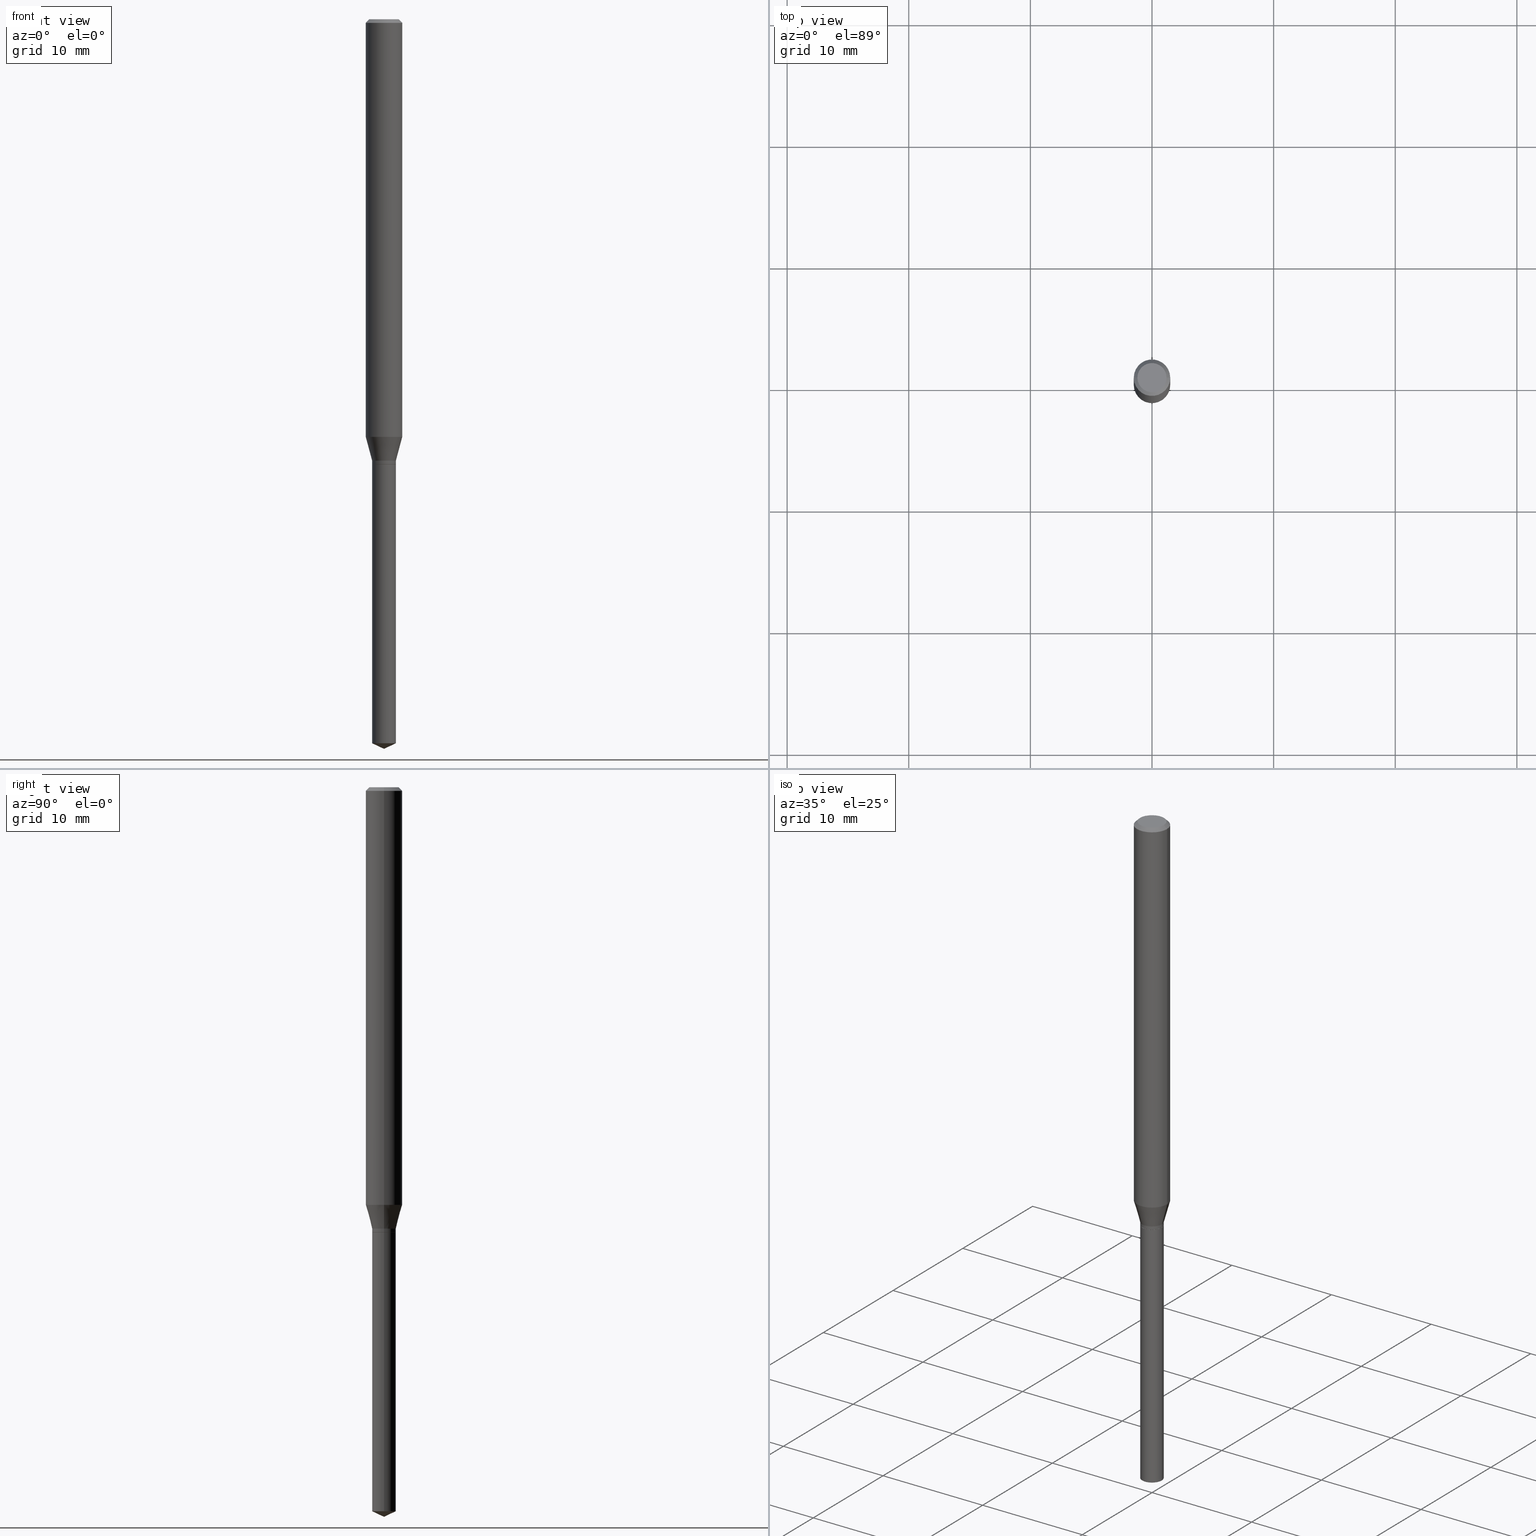
[diagram: canonical four-view strip — front | top / right | iso, engineering-drawing reading convention]
A machine part, canonical four-view strip (front | top / right | iso — engineering-drawing reading convention). The complete STEP part file that produces these views, byte-faithful:
ISO-10303-21;
HEADER;
FILE_DESCRIPTION (( 'STEP AP203' ),
    '1' );
FILE_NAME ('08368.STEP',
    '2024-04-24T14:39:10',
    ( '' ),
    ( '' ),
    'SwSTEP 2.0',
    'SolidWorks 2023',
    '' );
FILE_SCHEMA (( 'CONFIG_CONTROL_DESIGN' ));
ENDSEC;

DATA;
#1 = AXIS2_PLACEMENT_3D ( 'NONE', #54, #275, #362 ) ;
#2 = SECURITY_CLASSIFICATION ( '', '', #125 ) ;
#3 = FACE_OUTER_BOUND ( 'NONE', #156, .T. ) ;
#4 = CARTESIAN_POINT ( 'NONE',  ( 0.03789999999999999619, -5.294831450355630161E-15, -1.440700000000000314 ) ) ;
#5 = ADVANCED_FACE ( 'NONE', ( #3 ), #341, .T. ) ;
#6 = DATE_AND_TIME ( #348, #196 ) ;
#7 = AXIS2_PLACEMENT_3D ( 'NONE', #153, #488, #307 ) ;
#8 = EDGE_CURVE ( 'NONE', #342, #145, #367, .T. ) ;
#9 = AXIS2_PLACEMENT_3D ( 'NONE', #206, #279, #82 ) ;
#10 = DIRECTION ( 'NONE',  ( -2.445468806185136877E-29, 3.491481338843145188E-15, 1.000000000000000000 ) ) ;
#11 = DIRECTION ( 'NONE',  ( 1.000000000000000000, -6.982962677686268288E-15, 0.000000000000000000 ) ) ;
#12 = APPROVAL_DATE_TIME ( #350, #278 ) ;
#13 = ADVANCED_FACE ( 'NONE', ( #306 ), #106, .T. ) ;
#14 = DIRECTION ( 'NONE',  ( 1.000000000000000000, -6.982962677686277755E-15, 0.000000000000000000 ) ) ;
#15 = AXIS2_PLACEMENT_3D ( 'NONE', #117, #432, #398 ) ;
#16 = ORGANIZATION ( 'UNSPECIFIED', 'UNSPECIFIED', '' ) ;
#17 = CARTESIAN_POINT ( 'NONE',  ( 0.05905000000000008159, -4.123439461173746736E-16, 2.879382386107504424E-30 ) ) ;
#18 = DIRECTION ( 'NONE',  ( -2.445468806185136597E-29, 3.491481338843145583E-15, 1.000000000000000000 ) ) ;
#19 = DIRECTION ( 'NONE',  ( 1.000000000000000000, -6.982962677686266711E-15, 0.000000000000000000 ) ) ;
#20 = CARTESIAN_POINT ( 'NONE',  ( 5.776197320209293305E-29, -8.246878922347511025E-15, -2.362000000000000099 ) ) ;
#21 = ORIENTED_EDGE ( 'NONE', *, *, #193, .T. ) ;
#22 = DIRECTION ( 'NONE',  ( 1.000000000000000000, -6.982962677686269077E-15, 0.000000000000000000 ) ) ;
#23 = CYLINDRICAL_SURFACE ( 'NONE', #436, 0.03840000000000004521 ) ;
#24 = AXIS2_PLACEMENT_3D ( 'NONE', #148, #303, #181 ) ;
#25 = EDGE_LOOP ( 'NONE', ( #39, #21, #394, #180 ) ) ;
#26 = CYLINDRICAL_SURFACE ( 'NONE', #262, 0.05905000000000008159 ) ;
#27 = DATE_AND_TIME ( #294, #35 ) ;
#28 = ORIENTED_EDGE ( 'NONE', *, *, #8, .T. ) ;
#29 = CARTESIAN_POINT ( 'NONE',  ( 0.000000000000000000, 0.000000000000000000, 0.000000000000000000 ) ) ;
#30 = APPROVAL ( #158, 'UNSPECIFIED' ) ;
#31 = VERTEX_POINT ( 'NONE', #4 ) ;
#32 = CARTESIAN_POINT ( 'NONE',  ( 3.523186909070927115E-29, -5.030177164871321543E-15, -1.440700000000000314 ) ) ;
#33 = APPROVAL_DATE_TIME ( #27, #474 ) ;
#34 = AXIS2_PLACEMENT_3D ( 'NONE', #51, #363, #237 ) ;
#35 = LOCAL_TIME ( 10, 39, 10.00000000000000000, #375 ) ;
#36 = VERTEX_POINT ( 'NONE', #38 ) ;
#37 = CARTESIAN_POINT ( 'NONE',  ( 0.03840000000000004521, -5.258170896297777797E-15, -1.429200000000000248 ) ) ;
#38 = CARTESIAN_POINT ( 'NONE',  ( 0.05905000000000017180, -5.133291609849517626E-15, -1.352133150823702445 ) ) ;
#39 = ORIENTED_EDGE ( 'NONE', *, *, #108, .T. ) ;
#40 = VERTEX_POINT ( 'NONE', #75 ) ;
#41 = FACE_OUTER_BOUND ( 'NONE', #481, .T. ) ;
#42 = AXIS2_PLACEMENT_3D ( 'NONE', #245, #407, #19 ) ;
#43 = LOCAL_TIME ( 10, 39, 10.00000000000000000, #445 ) ;
#44 = CARTESIAN_POINT ( 'NONE',  ( 3.523186909070927115E-29, -5.030177164871321543E-15, -1.440700000000000314 ) ) ;
#45 = CALENDAR_DATE ( 2024, 24, 4 ) ;
#46 = ORIENTED_EDGE ( 'NONE', *, *, #98, .T. ) ;
#47 = FACE_OUTER_BOUND ( 'NONE', #339, .T. ) ;
#48 = AXIS2_PLACEMENT_3D ( 'NONE', #371, #70, #336 ) ;
#49 = APPROVAL_PERSON_ORGANIZATION ( #471, #30, #119 ) ;
#50 = LINE ( 'NONE', #85, #451 ) ;
#51 = CARTESIAN_POINT ( 'NONE',  ( 3.523186909070927115E-29, -5.030177164871321543E-15, -1.440700000000000314 ) ) ;
#52 = DIRECTION ( 'NONE',  ( -2.445468806185136597E-29, 3.491481338843145583E-15, 1.000000000000000000 ) ) ;
#53 = DIRECTION ( 'NONE',  ( -2.445468806185136597E-29, 3.491481338843145583E-15, 1.000000000000000000 ) ) ;
#54 = CARTESIAN_POINT ( 'NONE',  ( 8.265746106709734507E-48, -1.180129479067563789E-33, -3.380025165646692144E-19 ) ) ;
#55 = DIRECTION ( 'NONE',  ( 1.000000000000000000, -6.982962677686265133E-15, 0.000000000000000000 ) ) ;
#56 = CONICAL_SURFACE ( 'NONE', #130, 84.42940631927430672, 1.134464013796315784 ) ;
#57 = CIRCLE ( 'NONE', #298, 0.03839999999999999664 ) ;
#58 = AXIS2_PLACEMENT_3D ( 'NONE', #164, #374, #22 ) ;
#59 = CARTESIAN_POINT ( 'NONE',  ( 5.776197320209293305E-29, -8.246878922347511025E-15, -2.362000000000000099 ) ) ;
#60 = CARTESIAN_POINT ( 'NONE',  ( 3.521964174667835434E-29, -5.028431424201900828E-15, -1.440200000000000591 ) ) ;
#61 = EDGE_CURVE ( 'NONE', #334, #187, #387, .T. ) ;
#62 = ADVANCED_FACE ( 'NONE', ( #41 ), #297, .T. ) ;
#63 = VERTEX_POINT ( 'NONE', #461 ) ;
#64 = VERTEX_POINT ( 'NONE', #430 ) ;
#65 = AXIS2_PLACEMENT_3D ( 'NONE', #137, #450, #256 ) ;
#66 = CC_DESIGN_SECURITY_CLASSIFICATION ( #2, ( #478 ) ) ;
#67 = ORIENTED_EDGE ( 'NONE', *, *, #203, .F. ) ;
#68 = CC_DESIGN_PERSON_AND_ORGANIZATION_ASSIGNMENT ( #129, #285, ( #2 ) ) ;
#69 = ORIENTED_EDGE ( 'NONE', *, *, #98, .F. ) ;
#70 = DIRECTION ( 'NONE',  ( 2.438088387897960049E-29, -3.491481338843145188E-15, -1.000000000000000000 ) ) ;
#71 = EDGE_LOOP ( 'NONE', ( #149, #290, #486, #257 ) ) ;
#72 = DIRECTION ( 'NONE',  ( -2.445468806185136597E-29, 3.491481338843145583E-15, 1.000000000000000000 ) ) ;
#73 = CIRCLE ( 'NONE', #194, 0.03839999999999999664 ) ;
#74 = CIRCLE ( 'NONE', #65, 0.05904999999999999832 ) ;
#75 = CARTESIAN_POINT ( 'NONE',  ( 0.03839999999999998970, -8.452505476884922181E-15, -2.344093785926848028 ) ) ;
#76 = ORIENTED_EDGE ( 'NONE', *, *, #61, .F. ) ;
#77 = ORIENTED_EDGE ( 'NONE', *, *, #391, .T. ) ;
#78 = LINE ( 'NONE', #349, #490 ) ;
#79 = CIRCLE ( 'NONE', #150, 0.03840000000000004521 ) ;
#80 = VERTEX_POINT ( 'NONE', #200 ) ;
#81 = PLANE ( 'NONE',  #34 ) ;
#82 = DIRECTION ( 'NONE',  ( 1.000000000000000000, -6.982962677686269077E-15, 0.000000000000000000 ) ) ;
#83 = EDGE_CURVE ( 'NONE', #80, #142, #79, .T. ) ;
#84 = CONICAL_SURFACE ( 'NONE', #151, 0.03840000000000004521, 0.2617993877991499074 ) ;
#85 = CARTESIAN_POINT ( 'NONE',  ( 0.05904999999999999832, -4.463468013801466955E-16, -0.01181000000000007044 ) ) ;
#86 = LINE ( 'NONE', #242, #104 ) ;
#87 = FACE_OUTER_BOUND ( 'NONE', #300, .T. ) ;
#88 = CYLINDRICAL_SURFACE ( 'NONE', #326, 0.03840000000000004521 ) ;
#89 = CIRCLE ( 'NONE', #24, 0.03789999999999999619 ) ;
#90 = EDGE_CURVE ( 'NONE', #447, #187, #78, .T. ) ;
#91 = DATE_AND_TIME ( #252, #43 ) ;
#92 = DIRECTION ( 'NONE',  ( 1.000000000000000000, -6.982962677686270655E-15, 0.000000000000000000 ) ) ;
#93 = ORIENTED_EDGE ( 'NONE', *, *, #251, .T. ) ;
#94 = CARTESIAN_POINT ( 'NONE',  ( -0.03840000000000005215, -4.736379866306383524E-15, -1.440200000000000591 ) ) ;
#95 = ADVANCED_FACE ( 'NONE', ( #47 ), #358, .T. ) ;
#96 = AXIS2_PLACEMENT_3D ( 'NONE', #199, #197, #105 ) ;
#97 = CARTESIAN_POINT ( 'NONE',  ( 0.03840000000000004521, -2.681457668231529568E-16, 1.872451881905641640E-30 ) ) ;
#98 = EDGE_CURVE ( 'NONE', #31, #484, #120, .T. ) ;
#99 = ORIENTED_EDGE ( 'NONE', *, *, #397, .T. ) ;
#100 = EDGE_LOOP ( 'NONE', ( #99, #259, #414, #174 ) ) ;
#101 = DIRECTION ( 'NONE',  ( -2.445468806185136877E-29, 3.491481338843145188E-15, 1.000000000000000000 ) ) ;
#102 = ORIENTED_EDGE ( 'NONE', *, *, #251, .F. ) ;
#103 = VECTOR ( 'NONE', #352, 39.37007874015748143 ) ;
#104 = VECTOR ( 'NONE', #403, 39.37007874015748143 ) ;
#105 = DIRECTION ( 'NONE',  ( 1.000000000000000000, -6.982962677686277755E-15, 0.000000000000000000 ) ) ;
#106 = CYLINDRICAL_SURFACE ( 'NONE', #218, 0.05905000000000008159 ) ;
#107 = DIRECTION ( 'NONE',  ( 1.000000000000000000, -6.982962677686269077E-15, 0.000000000000000000 ) ) ;
#108 = EDGE_CURVE ( 'NONE', #40, #346, #73, .T. ) ;
#109 = ORIENTED_EDGE ( 'NONE', *, *, #232, .T. ) ;
#110 = LOCAL_TIME ( 10, 39, 10.00000000000000000, #395 ) ;
#111 = DIRECTION ( 'NONE',  ( -2.445468806185136877E-29, 3.491481338843145188E-15, 1.000000000000000000 ) ) ;
#112 = DIRECTION ( 'NONE',  ( 1.000000000000000000, -6.982962677686268288E-15, 0.000000000000000000 ) ) ;
#113 = UNCERTAINTY_MEASURE_WITH_UNIT (LENGTH_MEASURE( 1.000000000000000082E-05 ), #231, 'distance_accuracy_value', 'NONE');
#114 = ADVANCED_FACE ( 'NONE', ( #323 ), #88, .T. ) ;
#115 = DIRECTION ( 'NONE',  ( 1.000000000000000000, -6.982962677686265133E-15, 0.000000000000000000 ) ) ;
#116 = APPROVAL_ROLE ( '' ) ;
#117 = CARTESIAN_POINT ( 'NONE',  ( 2.888098660104663766E-31, -4.123439461173779647E-17, -0.01181000000000007044 ) ) ;
#118 = CARTESIAN_POINT ( 'NONE',  ( 0.03839999999999999664, -5.298322931694473957E-15, -1.440700000000000314 ) ) ;
#119 = APPROVAL_ROLE ( '' ) ;
#120 = CIRCLE ( 'NONE', #417, 0.03789999999999999619 ) ;
#121 = AXIS2_PLACEMENT_3D ( 'NONE', #485, #144, #455 ) ;
#122 = DIRECTION ( 'NONE',  ( -2.445468806185136597E-29, 3.491481338843145583E-15, 1.000000000000000000 ) ) ;
#123 = CARTESIAN_POINT ( 'NONE',  ( 3.523186909070927115E-29, -5.030177164871321543E-15, -1.440700000000000314 ) ) ;
#124 = CARTESIAN_POINT ( 'NONE',  ( 0.03839999999999999664, -5.298322931694473957E-15, -1.440700000000000314 ) ) ;
#125 = SECURITY_CLASSIFICATION_LEVEL ( 'unclassified' ) ;
#126 = CC_DESIGN_DATE_AND_TIME_ASSIGNMENT ( #91, #411, ( #2 ) ) ;
#127 = CARTESIAN_POINT ( 'NONE',  ( 3.495064017799797725E-29, -4.990025129474624594E-15, -1.429200000000000248 ) ) ;
#128 = DIRECTION ( 'NONE',  ( 1.000000000000000000, -6.982962677686277755E-15, 0.000000000000000000 ) ) ;
#129 = PERSON_AND_ORGANIZATION ( #369, #16 ) ;
#130 = AXIS2_PLACEMENT_3D ( 'NONE', #434, #282, #11 ) ;
#131 = CIRCLE ( 'NONE', #424, 0.04724000000000000421 ) ;
#132 = CARTESIAN_POINT ( 'NONE',  ( 0.000000000000000000, 0.000000000000000000, 0.000000000000000000 ) ) ;
#133 = APPROVAL_STATUS ( 'not_yet_approved' ) ;
#134 = EDGE_LOOP ( 'NONE', ( #77, #372 ) ) ;
#135 = LINE ( 'NONE', #330, #408 ) ;
#136 = ORIENTED_EDGE ( 'NONE', *, *, #373, .F. ) ;
#137 = CARTESIAN_POINT ( 'NONE',  ( 2.888098660104663766E-31, -4.123439461173779647E-17, -0.01181000000000007044 ) ) ;
#138 = ORIENTED_EDGE ( 'NONE', *, *, #90, .T. ) ;
#139 =( NAMED_UNIT ( * ) SI_UNIT ( $, .STERADIAN. ) SOLID_ANGLE_UNIT ( ) );
#140 = DIRECTION ( 'NONE',  ( -2.445468806185136597E-29, 3.491481338843145583E-15, 1.000000000000000000 ) ) ;
#141 = AXIS2_PLACEMENT_3D ( 'NONE', #132, #404, #314 ) ;
#142 = VERTEX_POINT ( 'NONE', #274 ) ;
#143 = APPLICATION_CONTEXT ( 'configuration controlled 3d designs of mechanical parts and assemblies' ) ;
#144 = DIRECTION ( 'NONE',  ( -2.445468806185136597E-29, 3.491481338843145583E-15, 1.000000000000000000 ) ) ;
#145 = VERTEX_POINT ( 'NONE', #124 ) ;
#146 = ADVANCED_FACE ( 'NONE', ( #87 ), #56, .T. ) ;
#147 = EDGE_CURVE ( 'NONE', #40, #145, #406, .T. ) ;
#148 = CARTESIAN_POINT ( 'NONE',  ( 3.523186909070927115E-29, -5.030177164871321543E-15, -1.440700000000000314 ) ) ;
#149 = ORIENTED_EDGE ( 'NONE', *, *, #83, .T. ) ;
#150 = AXIS2_PLACEMENT_3D ( 'NONE', #155, #308, #107 ) ;
#151 = AXIS2_PLACEMENT_3D ( 'NONE', #127, #162, #167 ) ;
#152 = ORIENTED_EDGE ( 'NONE', *, *, #347, .F. ) ;
#153 = CARTESIAN_POINT ( 'NONE',  ( 2.888098660104663766E-31, -4.123439461173779647E-17, -0.01181000000000007044 ) ) ;
#154 = EDGE_CURVE ( 'NONE', #63, #334, #131, .T. ) ;
#155 = CARTESIAN_POINT ( 'NONE',  ( 3.495064017799797725E-29, -4.990025129474624594E-15, -1.429200000000000248 ) ) ;
#156 = EDGE_LOOP ( 'NONE', ( #376, #263, #182, #385 ) ) ;
#157 = CONICAL_SURFACE ( 'NONE', #368, 0.03789999999999999619, 0.7853981633978751598 ) ;
#158 = APPROVAL_STATUS ( 'not_yet_approved' ) ;
#159 = DIRECTION ( 'NONE',  ( 0.7071067811868493314, -2.468850131085418026E-15, 0.7071067811862457031 ) ) ;
#160 = PRODUCT_RELATED_PRODUCT_CATEGORY ( 'detail', '', ( #402 ) ) ;
#161 = FACE_OUTER_BOUND ( 'NONE', #183, .T. ) ;
#162 = DIRECTION ( 'NONE',  ( -2.445468806185136597E-29, 3.491481338843145583E-15, 1.000000000000000000 ) ) ;
#163 = DIRECTION ( 'NONE',  ( -2.445468806185136597E-29, 3.491481338843145583E-15, 1.000000000000000000 ) ) ;
#164 = CARTESIAN_POINT ( 'NONE',  ( 3.495064017799797725E-29, -4.990025129474624594E-15, -1.429200000000000248 ) ) ;
#165 = FACE_OUTER_BOUND ( 'NONE', #265, .T. ) ;
#166 = CIRCLE ( 'NONE', #483, 0.03840000000000004521 ) ;
#167 = DIRECTION ( 'NONE',  ( 1.000000000000000000, -6.982962677686269077E-15, 0.000000000000000000 ) ) ;
#168 = CARTESIAN_POINT ( 'NONE',  ( 3.523186909070927115E-29, -5.030177164871321543E-15, -1.440700000000000314 ) ) ;
#169 = DATE_AND_TIME ( #448, #361 ) ;
#170 = CARTESIAN_POINT ( 'NONE',  ( 8.265746106709734507E-48, -1.180129479067563789E-33, -3.380025165646692144E-19 ) ) ;
#171 = FACE_OUTER_BOUND ( 'NONE', #329, .T. ) ;
#172 = APPROVAL_ROLE ( '' ) ;
#173 = PERSON_AND_ORGANIZATION ( #369, #16 ) ;
#174 = ORIENTED_EDGE ( 'NONE', *, *, #332, .F. ) ;
#175 = VECTOR ( 'NONE', #396, 39.37007874015748143 ) ;
#176 =( LENGTH_UNIT ( ) NAMED_UNIT ( * ) SI_UNIT ( $, .METRE. ) );
#177 = APPROVAL_PERSON_ORGANIZATION ( #173, #474, #172 ) ;
#178 = CC_DESIGN_DATE_AND_TIME_ASSIGNMENT ( #6, #317, ( #238 ) ) ;
#179 = DIRECTION ( 'NONE',  ( 1.000000000000000000, -6.982962677686266711E-15, 4.876176775795935793E-29 ) ) ;
#180 = ORIENTED_EDGE ( 'NONE', *, *, #147, .F. ) ;
#181 = DIRECTION ( 'NONE',  ( 1.000000000000000000, -6.982962677686265133E-15, 0.000000000000000000 ) ) ;
#182 = ORIENTED_EDGE ( 'NONE', *, *, #147, .T. ) ;
#183 = EDGE_LOOP ( 'NONE', ( #69, #152 ) ) ;
#184 = CARTESIAN_POINT ( 'NONE',  ( -0.03789999999999999619, -4.758232240844132842E-15, -1.440700000000000314 ) ) ;
#185 = VECTOR ( 'NONE', #101, 39.37007874015748143 ) ;
#186 = FACE_OUTER_BOUND ( 'NONE', #134, .T. ) ;
#187 = VERTEX_POINT ( 'NONE', #271 ) ;
#188 = CC_DESIGN_PERSON_AND_ORGANIZATION_ASSIGNMENT ( #270, #236, ( #238 ) ) ;
#189 = CARTESIAN_POINT ( 'NONE',  ( -0.03839999999999999664, -6.334420026934666468E-15, -1.440700000000000314 ) ) ;
#190 = CARTESIAN_POINT ( 'NONE',  ( -0.05904999999999999832, 3.711095515056362547E-16, -0.01181000000000007044 ) ) ;
#191 = ORIENTED_EDGE ( 'NONE', *, *, #397, .F. ) ;
#192 = PRODUCT_DEFINITION_SHAPE ( 'NONE', 'NONE',  #238 ) ;
#193 = EDGE_CURVE ( 'NONE', #346, #342, #86, .T. ) ;
#194 = AXIS2_PLACEMENT_3D ( 'NONE', #437, #18, #468 ) ;
#195 = CIRCLE ( 'NONE', #286, 0.05905000000000015792 ) ;
#196 = LOCAL_TIME ( 10, 39, 10.00000000000000000, #435 ) ;
#197 = DIRECTION ( 'NONE',  ( -2.445468806185136597E-29, 3.491481338843145583E-15, 1.000000000000000000 ) ) ;
#198 = PERSON_AND_ORGANIZATION ( #369, #16 ) ;
#199 = CARTESIAN_POINT ( 'NONE',  ( 3.523186909070927115E-29, -5.030177164871321543E-15, -1.440700000000000314 ) ) ;
#200 = CARTESIAN_POINT ( 'NONE',  ( 0.03840000000000004521, -5.258170896297777797E-15, -1.429200000000000248 ) ) ;
#201 = PERSON_AND_ORGANIZATION_ROLE ( 'design_owner' ) ;
#202 = PLANE ( 'NONE',  #418 ) ;
#203 = EDGE_CURVE ( 'NONE', #305, #217, #389, .T. ) ;
#204 = LINE ( 'NONE', #291, #225 ) ;
#205 = CARTESIAN_POINT ( 'NONE',  ( -0.05905000000000017180, -4.301372178265801635E-15, -1.352133150823702445 ) ) ;
#206 = CARTESIAN_POINT ( 'NONE',  ( 3.521964174667835434E-29, -5.028431424201900828E-15, -1.440200000000000591 ) ) ;
#207 = COORDINATED_UNIVERSAL_TIME_OFFSET ( 5, 0, .BEHIND. ) ;
#208 = ADVANCED_FACE ( 'NONE', ( #240 ), #356, .T. ) ;
#209 = MANIFOLD_SOLID_BREP ( 'Body-Move/Copy2[1]', #343 ) ;
#210 = DIRECTION ( 'NONE',  ( -2.445468806185136597E-29, 3.491481338843145583E-15, 1.000000000000000000 ) ) ;
#211 = AXIS2_PLACEMENT_3D ( 'NONE', #301, #366, #226 ) ;
#212 = CARTESIAN_POINT ( 'NONE',  ( 5.776197320209293305E-29, -8.246878922347511025E-15, -2.362000000000000099 ) ) ;
#213 = DIRECTION ( 'NONE',  ( -0.9063077870366504918, 7.915267918739013053E-15, 0.4226182617406979425 ) ) ;
#214 = ORIENTED_EDGE ( 'NONE', *, *, #264, .F. ) ;
#215 = EDGE_CURVE ( 'NONE', #36, #64, #359, .T. ) ;
#216 = ADVANCED_FACE ( 'NONE', ( #165 ), #202, .F. ) ;
#217 = VERTEX_POINT ( 'NONE', #470 ) ;
#218 = AXIS2_PLACEMENT_3D ( 'NONE', #228, #230, #465 ) ;
#219 = CIRCLE ( 'NONE', #1, 0.04724000000000000421 ) ;
#220 = LINE ( 'NONE', #37, #444 ) ;
#221 = ORIENTED_EDGE ( 'NONE', *, *, #340, .T. ) ;
#222 = FACE_OUTER_BOUND ( 'NONE', #302, .T. ) ;
#223 = ADVANCED_FACE ( 'NONE', ( #246 ), #157, .T. ) ;
#224 = ORIENTED_EDGE ( 'NONE', *, *, #280, .F. ) ;
#225 = VECTOR ( 'NONE', #159, 39.37007874015748143 ) ;
#226 = DIRECTION ( 'NONE',  ( 1.000000000000000000, -6.982962677686270655E-15, 0.000000000000000000 ) ) ;
#227 = ORIENTED_EDGE ( 'NONE', *, *, #373, .T. ) ;
#228 = CARTESIAN_POINT ( 'NONE',  ( 0.000000000000000000, 0.000000000000000000, 0.000000000000000000 ) ) ;
#229 = EDGE_CURVE ( 'NONE', #305, #142, #476, .T. ) ;
#230 = DIRECTION ( 'NONE',  ( -2.445468806185136597E-29, 3.491481338843145583E-15, 1.000000000000000000 ) ) ;
#231 =( CONVERSION_BASED_UNIT ( 'INCH', #412 ) LENGTH_UNIT ( ) NAMED_UNIT ( #380 ) );
#232 = EDGE_CURVE ( 'NONE', #386, #346, #409, .T. ) ;
#233 = CONICAL_SURFACE ( 'NONE', #15, 0.05904999999999999832, 0.7853981633974452814 ) ;
#234 = ORIENTED_EDGE ( 'NONE', *, *, #332, .T. ) ;
#235 = EDGE_LOOP ( 'NONE', ( #428, #453, #423, #420 ) ) ;
#236 = PERSON_AND_ORGANIZATION_ROLE ( 'creator' ) ;
#237 = DIRECTION ( 'NONE',  ( 1.000000000000000000, -6.982962677686265922E-15, 4.876176775795935793E-29 ) ) ;
#238 = PRODUCT_DEFINITION ( 'UNKNOWN', '', #478, #438 ) ;
#239 = AXIS2_PLACEMENT_3D ( 'NONE', #276, #312, #55 ) ;
#240 = FACE_OUTER_BOUND ( 'NONE', #25, .T. ) ;
#241 = AXIS2_PLACEMENT_3D ( 'NONE', #32, #140, #381 ) ;
#242 = CARTESIAN_POINT ( 'NONE',  ( -0.03839999999999999664, -4.757328754339442356E-15, -1.440700000000000314 ) ) ;
#243 = ADVANCED_FACE ( 'NONE', ( #161 ), #81, .F. ) ;
#244 = DIRECTION ( 'NONE',  ( -2.445468806185136597E-29, 3.491481338843145583E-15, 1.000000000000000000 ) ) ;
#245 = CARTESIAN_POINT ( 'NONE',  ( 2.888098660104663766E-31, -4.123439461173779647E-17, -0.01181000000000007044 ) ) ;
#246 = FACE_OUTER_BOUND ( 'NONE', #421, .T. ) ;
#247 = VECTOR ( 'NONE', #441, 39.37007874015748854 ) ;
#248 = CC_DESIGN_APPROVAL ( #278, ( #238 ) ) ;
#249 = LINE ( 'NONE', #283, #247 ) ;
#250 = CARTESIAN_POINT ( 'NONE',  ( 3.306599442148187304E-29, -4.720947663732141917E-15, -1.352133150823702445 ) ) ;
#251 = EDGE_CURVE ( 'NONE', #31, #217, #204, .T. ) ;
#252 = CALENDAR_DATE ( 2024, 24, 4 ) ;
#253 = ORIENTED_EDGE ( 'NONE', *, *, #419, .F. ) ;
#254 = ORIENTED_EDGE ( 'NONE', *, *, #427, .T. ) ;
#255 = CIRCLE ( 'NONE', #42, 0.05904999999999999832 ) ;
#256 = DIRECTION ( 'NONE',  ( 1.000000000000000000, -6.982962677686266711E-15, 0.000000000000000000 ) ) ;
#257 = ORIENTED_EDGE ( 'NONE', *, *, #340, .F. ) ;
#258 = FACE_OUTER_BOUND ( 'NONE', #100, .T. ) ;
#259 = ORIENTED_EDGE ( 'NONE', *, *, #229, .T. ) ;
#260 = DIRECTION ( 'NONE',  ( 0.2588190451025211836, 1.565188264969622559E-15, 0.9659258262890679791 ) ) ;
#261 = ORIENTED_EDGE ( 'NONE', *, *, #215, .F. ) ;
#262 = AXIS2_PLACEMENT_3D ( 'NONE', #487, #377, #293 ) ;
#263 = ORIENTED_EDGE ( 'NONE', *, *, #264, .T. ) ;
#264 = EDGE_CURVE ( 'NONE', #346, #40, #57, .T. ) ;
#265 = EDGE_LOOP ( 'NONE', ( #480, #28 ) ) ;
#266 = EDGE_LOOP ( 'NONE', ( #253, #292, #221, #269 ) ) ;
#267 = AXIS2_PLACEMENT_3D ( 'NONE', #44, #345, #310 ) ;
#268 = CONICAL_SURFACE ( 'NONE', #58, 0.03840000000000004521, 0.2617993877991499074 ) ;
#269 = ORIENTED_EDGE ( 'NONE', *, *, #296, .F. ) ;
#270 = PERSON_AND_ORGANIZATION ( #369, #16 ) ;
#271 = CARTESIAN_POINT ( 'NONE',  ( -0.05904999999999999832, -1.961515543705598752E-15, -0.01181000000000007044 ) ) ;
#272 = MECHANICAL_CONTEXT ( 'NONE', #313, 'mechanical' ) ;
#273 = FACE_OUTER_BOUND ( 'NONE', #425, .T. ) ;
#274 = CARTESIAN_POINT ( 'NONE',  ( -0.03840000000000004521, -4.736379866306383524E-15, -1.429200000000000248 ) ) ;
#275 = DIRECTION ( 'NONE',  ( -2.445468806185136597E-29, 3.491481338843145583E-15, 1.000000000000000000 ) ) ;
#276 = CARTESIAN_POINT ( 'NONE',  ( 3.523186909070927115E-29, -5.030177164871321543E-15, -1.440700000000000314 ) ) ;
#277 = VECTOR ( 'NONE', #213, 39.37007874015748854 ) ;
#278 = APPROVAL ( #469, 'UNSPECIFIED' ) ;
#279 = DIRECTION ( 'NONE',  ( -2.445468806185136597E-29, 3.491481338843145583E-15, 1.000000000000000000 ) ) ;
#280 = EDGE_CURVE ( 'NONE', #386, #40, #443, .T. ) ;
#281 = PERSON_AND_ORGANIZATION ( #369, #16 ) ;
#282 = DIRECTION ( 'NONE',  ( -2.445468806185136597E-29, 3.491481338843145583E-15, 1.000000000000000000 ) ) ;
#283 = CARTESIAN_POINT ( 'NONE',  ( -0.03840000000000004521, -4.717176718942745407E-15, -1.429200000000000248 ) ) ;
#284 = DIRECTION ( 'NONE',  ( 0.9063077870366504918, -4.853149677051389045E-15, 0.4226182617406979425 ) ) ;
#285 = PERSON_AND_ORGANIZATION_ROLE ( 'classification_officer' ) ;
#286 = AXIS2_PLACEMENT_3D ( 'NONE', #250, #410, #92 ) ;
#287 = EDGE_CURVE ( 'NONE', #36, #447, #195, .T. ) ;
#288 = CARTESIAN_POINT ( 'NONE',  ( 5.732408232256526477E-29, -8.184359710061769767E-15, -2.344093785926848028 ) ) ;
#289 = ADVANCED_FACE ( 'NONE', ( #222 ), #26, .T. ) ;
#290 = ORIENTED_EDGE ( 'NONE', *, *, #419, .T. ) ;
#291 = CARTESIAN_POINT ( 'NONE',  ( 0.03789999999999999619, -5.294831450355630161E-15, -1.440700000000000314 ) ) ;
#292 = ORIENTED_EDGE ( 'NONE', *, *, #325, .T. ) ;
#293 = DIRECTION ( 'NONE',  ( 1.000000000000000000, -6.982962677686267499E-15, 4.876176775795936353E-29 ) ) ;
#294 = CALENDAR_DATE ( 2024, 24, 4 ) ;
#295 = ORIENTED_EDGE ( 'NONE', *, *, #287, .T. ) ;
#296 = EDGE_CURVE ( 'NONE', #447, #36, #459, .T. ) ;
#297 = CONICAL_SURFACE ( 'NONE', #7, 0.05904999999999999832, 0.7853981633974452814 ) ;
#298 = AXIS2_PLACEMENT_3D ( 'NONE', #288, #357, #128 ) ;
#299 = APPROVAL_PERSON_ORGANIZATION ( #198, #278, #116 ) ;
#300 = EDGE_LOOP ( 'NONE', ( #452, #333, #214 ) ) ;
#301 = CARTESIAN_POINT ( 'NONE',  ( 3.306599442148187304E-29, -4.720947663732141917E-15, -1.352133150823702445 ) ) ;
#302 = EDGE_LOOP ( 'NONE', ( #295, #138, #136, #261 ) ) ;
#303 = DIRECTION ( 'NONE',  ( -2.445468806185136597E-29, 3.491481338843145583E-15, 1.000000000000000000 ) ) ;
#304 = ADVANCED_FACE ( 'NONE', ( #258 ), #23, .T. ) ;
#305 = VERTEX_POINT ( 'NONE', #94 ) ;
#306 = FACE_OUTER_BOUND ( 'NONE', #235, .T. ) ;
#307 = DIRECTION ( 'NONE',  ( -1.000000000000000000, 6.982962677686266711E-15, 0.000000000000000000 ) ) ;
#308 = DIRECTION ( 'NONE',  ( -2.445468806185136597E-29, 3.491481338843145583E-15, 1.000000000000000000 ) ) ;
#309 = EDGE_CURVE ( 'NONE', #145, #342, #464, .T. ) ;
#310 = DIRECTION ( 'NONE',  ( 1.000000000000000000, -6.982962677686277755E-15, 0.000000000000000000 ) ) ;
#311 = PERSON_AND_ORGANIZATION ( #369, #16 ) ;
#312 = DIRECTION ( 'NONE',  ( -2.445468806185136597E-29, 3.491481338843145583E-15, 1.000000000000000000 ) ) ;
#313 = APPLICATION_CONTEXT ( 'configuration controlled 3d designs of mechanical parts and assemblies' ) ;
#314 = DIRECTION ( 'NONE',  ( 1.000000000000000000, 0.000000000000000000, 0.000000000000000000 ) ) ;
#315 = DIRECTION ( 'NONE',  ( 0.7071067811865453523, -7.319954787623248157E-15, -0.7071067811865496822 ) ) ;
#316 = DIRECTION ( 'NONE',  ( 1.000000000000000000, -6.982962677686266711E-15, 4.876185090822587894E-29 ) ) ;
#317 = DATE_TIME_ROLE ( 'creation_date' ) ;
#318 = ADVANCED_FACE ( 'NONE', ( #186 ), #422, .F. ) ;
#319 = DIRECTION ( 'NONE',  ( -1.000000000000000000, 6.982962677686265922E-15, -4.876176775795935793E-29 ) ) ;
#320 = AXIS2_PLACEMENT_3D ( 'NONE', #466, #122, #112 ) ;
#321 = DIRECTION ( 'NONE',  ( 2.438088387897960049E-29, -3.491481338843145188E-15, -1.000000000000000000 ) ) ;
#322 = PERSON_AND_ORGANIZATION_ROLE ( 'design_supplier' ) ;
#323 = FACE_OUTER_BOUND ( 'NONE', #337, .T. ) ;
#324 = PERSON_AND_ORGANIZATION_ROLE ( 'creator' ) ;
#325 = EDGE_CURVE ( 'NONE', #142, #80, #344, .T. ) ;
#326 = AXIS2_PLACEMENT_3D ( 'NONE', #354, #163, #477 ) ;
#327 = ORIENTED_EDGE ( 'NONE', *, *, #347, .T. ) ;
#328 = LINE ( 'NONE', #97, #185 ) ;
#329 = EDGE_LOOP ( 'NONE', ( #224, #109, #392 ) ) ;
#330 = CARTESIAN_POINT ( 'NONE',  ( -0.03789999999999999619, -4.760881468018243254E-15, -1.440700000000000314 ) ) ;
#331 = SHAPE_DEFINITION_REPRESENTATION ( #192, #400 ) ;
#332 = EDGE_CURVE ( 'NONE', #217, #80, #328, .T. ) ;
#333 = ORIENTED_EDGE ( 'NONE', *, *, #280, .T. ) ;
#334 = VERTEX_POINT ( 'NONE', #416 ) ;
#335 =( GEOMETRIC_REPRESENTATION_CONTEXT ( 3 ) GLOBAL_UNCERTAINTY_ASSIGNED_CONTEXT ( ( #113 ) ) GLOBAL_UNIT_ASSIGNED_CONTEXT ( ( #231, #415, #139 ) ) REPRESENTATION_CONTEXT ( 'NONE', 'WORKASPACE' ) );
#336 = DIRECTION ( 'NONE',  ( -1.000000000000000000, 6.982962677686265922E-15, -4.876176775795935793E-29 ) ) ;
#337 = EDGE_LOOP ( 'NONE', ( #449, #456, #234, #426 ) ) ;
#338 = CARTESIAN_POINT ( 'NONE',  ( -0.03839999999999998970, -7.911511299529891368E-15, -2.344093785926848028 ) ) ;
#339 = EDGE_LOOP ( 'NONE', ( #479, #327, #93, #67 ) ) ;
#340 = EDGE_CURVE ( 'NONE', #80, #36, #220, .T. ) ;
#341 = CYLINDRICAL_SURFACE ( 'NONE', #267, 0.03839999999999999664 ) ;
#342 = VERTEX_POINT ( 'NONE', #189 ) ;
#343 = CLOSED_SHELL ( 'NONE', ( #208, #433, #146, #5, #216 ) ) ;
#344 = CIRCLE ( 'NONE', #121, 0.03840000000000004521 ) ;
#345 = DIRECTION ( 'NONE',  ( -2.445468806185136597E-29, 3.491481338843145583E-15, 1.000000000000000000 ) ) ;
#346 = VERTEX_POINT ( 'NONE', #338 ) ;
#347 = EDGE_CURVE ( 'NONE', #484, #31, #89, .T. ) ;
#348 = CALENDAR_DATE ( 2024, 24, 4 ) ;
#349 = CARTESIAN_POINT ( 'NONE',  ( -0.05905000000000008159, 4.195754854663397395E-16, -2.904631170795525745E-30 ) ) ;
#350 = DATE_AND_TIME ( #45, #110 ) ;
#351 = VECTOR ( 'NONE', #284, 39.37007874015748854 ) ;
#352 = DIRECTION ( 'NONE',  ( -2.445468806185136877E-29, 3.491481338843145188E-15, 1.000000000000000000 ) ) ;
#353 = EDGE_CURVE ( 'NONE', #484, #305, #135, .T. ) ;
#354 = CARTESIAN_POINT ( 'NONE',  ( 0.000000000000000000, 0.000000000000000000, 0.000000000000000000 ) ) ;
#355 = FACE_OUTER_BOUND ( 'NONE', #266, .T. ) ;
#356 = CYLINDRICAL_SURFACE ( 'NONE', #399, 0.03839999999999999664 ) ;
#357 = DIRECTION ( 'NONE',  ( -2.445468806185136597E-29, 3.491481338843145583E-15, 1.000000000000000000 ) ) ;
#358 = CONICAL_SURFACE ( 'NONE', #239, 0.03789999999999999619, 0.7853981633978751598 ) ;
#359 = LINE ( 'NONE', #17, #472 ) ;
#360 = CONICAL_SURFACE ( 'NONE', #320, 84.42940631927430672, 1.134464013796315784 ) ;
#361 = LOCAL_TIME ( 10, 39, 10.00000000000000000, #207 ) ;
#362 = DIRECTION ( 'NONE',  ( 1.000000000000000000, -6.982962677686266711E-15, 4.876185090822587894E-29 ) ) ;
#363 = DIRECTION ( 'NONE',  ( -2.438088387897960049E-29, 3.491481338843145188E-15, 1.000000000000000000 ) ) ;
#364 = APPROVAL_DATE_TIME ( #169, #30 ) ;
#365 = ORIENTED_EDGE ( 'NONE', *, *, #446, .F. ) ;
#366 = DIRECTION ( 'NONE',  ( -2.445468806185136597E-29, 3.491481338843145583E-15, 1.000000000000000000 ) ) ;
#367 = CIRCLE ( 'NONE', #96, 0.03839999999999999664 ) ;
#368 = AXIS2_PLACEMENT_3D ( 'NONE', #473, #431, #401 ) ;
#369 = PERSON ( 'UNSPECIFIED', 'UNSPECIFIED', 'UNSPECIFIED', ('UNSPECIFIED'), ('UNSPECIFIED'), ('UNSPECIFIED') ) ;
#370 = CC_DESIGN_PERSON_AND_ORGANIZATION_ASSIGNMENT ( #413, #324, ( #478 ) ) ;
#371 = CARTESIAN_POINT ( 'NONE',  ( 4.132873053354867254E-48, -5.900647395337818946E-34, -1.690012582823346072E-19 ) ) ;
#372 = ORIENTED_EDGE ( 'NONE', *, *, #154, .T. ) ;
#373 = EDGE_CURVE ( 'NONE', #64, #187, #74, .T. ) ;
#374 = DIRECTION ( 'NONE',  ( -2.445468806185136597E-29, 3.491481338843145583E-15, 1.000000000000000000 ) ) ;
#375 = COORDINATED_UNIVERSAL_TIME_OFFSET ( 5, 0, .BEHIND. ) ;
#376 = ORIENTED_EDGE ( 'NONE', *, *, #193, .F. ) ;
#377 = DIRECTION ( 'NONE',  ( -2.445468806185136597E-29, 3.491481338843145583E-15, 1.000000000000000000 ) ) ;
#378 = MANIFOLD_SOLID_BREP ( 'Body-Move/Copy2[2]', #463 ) ;
#379 = ORIENTED_EDGE ( 'NONE', *, *, #61, .T. ) ;
#380 = DIMENSIONAL_EXPONENTS ( 1.000000000000000000, 0.000000000000000000, 0.000000000000000000, 0.000000000000000000, 0.000000000000000000, 0.000000000000000000, 0.000000000000000000 ) ;
#381 = DIRECTION ( 'NONE',  ( 1.000000000000000000, -6.982962677686277755E-15, 0.000000000000000000 ) ) ;
#382 = ADVANCED_FACE ( 'NONE', ( #405 ), #84, .T. ) ;
#383 = ORIENTED_EDGE ( 'NONE', *, *, #446, .T. ) ;
#384 = CC_DESIGN_PERSON_AND_ORGANIZATION_ASSIGNMENT ( #311, #201, ( #402 ) ) ;
#385 = ORIENTED_EDGE ( 'NONE', *, *, #8, .F. ) ;
#386 = VERTEX_POINT ( 'NONE', #212 ) ;
#387 = LINE ( 'NONE', #190, #482 ) ;
#388 = APPLICATION_PROTOCOL_DEFINITION ( 'international standard', 'config_control_design', 1994, #313 ) ;
#389 = CIRCLE ( 'NONE', #9, 0.03840000000000004521 ) ;
#390 = CC_DESIGN_APPROVAL ( #30, ( #478 ) ) ;
#391 = EDGE_CURVE ( 'NONE', #334, #63, #219, .T. ) ;
#392 = ORIENTED_EDGE ( 'NONE', *, *, #108, .F. ) ;
#393 = APPLICATION_PROTOCOL_DEFINITION ( 'international standard', 'config_control_design', 1994, #143 ) ;
#394 = ORIENTED_EDGE ( 'NONE', *, *, #309, .F. ) ;
#395 = COORDINATED_UNIVERSAL_TIME_OFFSET ( 5, 0, .BEHIND. ) ;
#396 = DIRECTION ( 'NONE',  ( -2.445468806185136877E-29, 3.491481338843145188E-15, 1.000000000000000000 ) ) ;
#397 = EDGE_CURVE ( 'NONE', #217, #305, #166, .T. ) ;
#398 = DIRECTION ( 'NONE',  ( -1.000000000000000000, 6.982962677686266711E-15, 0.000000000000000000 ) ) ;
#399 = AXIS2_PLACEMENT_3D ( 'NONE', #439, #210, #14 ) ;
#400 = ADVANCED_BREP_SHAPE_REPRESENTATION ( '08368', ( #209, #378, #141 ), #335 ) ;
#401 = DIRECTION ( 'NONE',  ( 1.000000000000000000, -6.982962677686265133E-15, 0.000000000000000000 ) ) ;
#402 = PRODUCT ( '08368', '08368', '', ( #272 ) ) ;
#403 = DIRECTION ( 'NONE',  ( -2.445468806185136877E-29, 3.491481338843145188E-15, 1.000000000000000000 ) ) ;
#404 = DIRECTION ( 'NONE',  ( 0.000000000000000000, 0.000000000000000000, 1.000000000000000000 ) ) ;
#405 = FACE_OUTER_BOUND ( 'NONE', #71, .T. ) ;
#406 = LINE ( 'NONE', #118, #103 ) ;
#407 = DIRECTION ( 'NONE',  ( -2.445468806185136597E-29, 3.491481338843145583E-15, 1.000000000000000000 ) ) ;
#408 = VECTOR ( 'NONE', #457, 39.37007874015748143 ) ;
#409 = LINE ( 'NONE', #59, #277 ) ;
#410 = DIRECTION ( 'NONE',  ( -2.445468806185136597E-29, 3.491481338843145583E-15, 1.000000000000000000 ) ) ;
#411 = DATE_TIME_ROLE ( 'classification_date' ) ;
#412 = LENGTH_MEASURE_WITH_UNIT ( LENGTH_MEASURE( 0.02539999999999999897 ), #176 );
#413 = PERSON_AND_ORGANIZATION ( #369, #16 ) ;
#414 = ORIENTED_EDGE ( 'NONE', *, *, #83, .F. ) ;
#415 =( NAMED_UNIT ( * ) PLANE_ANGLE_UNIT ( ) SI_UNIT ( $, .RADIAN. ) );
#416 = CARTESIAN_POINT ( 'NONE',  ( -0.04724000000000000421, 3.504923541997677355E-16, -3.380025165670481712E-19 ) ) ;
#417 = AXIS2_PLACEMENT_3D ( 'NONE', #123, #53, #115 ) ;
#418 = AXIS2_PLACEMENT_3D ( 'NONE', #168, #321, #319 ) ;
#419 = EDGE_CURVE ( 'NONE', #142, #447, #249, .T. ) ;
#420 = ORIENTED_EDGE ( 'NONE', *, *, #427, .F. ) ;
#421 = EDGE_LOOP ( 'NONE', ( #46, #460, #191, #102 ) ) ;
#422 = PLANE ( 'NONE',  #48 ) ;
#423 = ORIENTED_EDGE ( 'NONE', *, *, #215, .T. ) ;
#424 = AXIS2_PLACEMENT_3D ( 'NONE', #170, #244, #316 ) ;
#425 = EDGE_LOOP ( 'NONE', ( #458, #383, #227, #76 ) ) ;
#426 = ORIENTED_EDGE ( 'NONE', *, *, #325, .F. ) ;
#427 = EDGE_CURVE ( 'NONE', #187, #64, #255, .T. ) ;
#428 = ORIENTED_EDGE ( 'NONE', *, *, #90, .F. ) ;
#429 = CC_DESIGN_APPROVAL ( #474, ( #2 ) ) ;
#430 = CARTESIAN_POINT ( 'NONE',  ( 0.05904999999999999832, -4.535783407291118600E-16, -0.01181000000000007044 ) ) ;
#431 = DIRECTION ( 'NONE',  ( -2.445468806185136597E-29, 3.491481338843145583E-15, 1.000000000000000000 ) ) ;
#432 = DIRECTION ( 'NONE',  ( 2.445468806185136597E-29, -3.491481338843145583E-15, -1.000000000000000000 ) ) ;
#433 = ADVANCED_FACE ( 'NONE', ( #171 ), #360, .T. ) ;
#434 = CARTESIAN_POINT ( 'NONE',  ( -9.050210213589845843E-28, 1.292130163076976058E-13, 37.00807874015747956 ) ) ;
#435 = COORDINATED_UNIVERSAL_TIME_OFFSET ( 5, 0, .BEHIND. ) ;
#436 = AXIS2_PLACEMENT_3D ( 'NONE', #29, #72, #179 ) ;
#437 = CARTESIAN_POINT ( 'NONE',  ( 5.732408232256526477E-29, -8.184359710061769767E-15, -2.344093785926848028 ) ) ;
#438 = DESIGN_CONTEXT ( 'detailed design', #143, 'design' ) ;
#439 = CARTESIAN_POINT ( 'NONE',  ( 3.523186909070927115E-29, -5.030177164871321543E-15, -1.440700000000000314 ) ) ;
#440 = ADVANCED_FACE ( 'NONE', ( #273 ), #233, .T. ) ;
#441 = DIRECTION ( 'NONE',  ( -0.2588190451025211836, 5.211531920934547886E-15, 0.9659258262890679791 ) ) ;
#442 = CARTESIAN_POINT ( 'NONE',  ( -0.03840000000000004521, 2.728484105318787926E-16, -1.888871074657885872E-30 ) ) ;
#443 = LINE ( 'NONE', #20, #351 ) ;
#444 = VECTOR ( 'NONE', #260, 39.37007874015748854 ) ;
#445 = COORDINATED_UNIVERSAL_TIME_OFFSET ( 5, 0, .BEHIND. ) ;
#446 = EDGE_CURVE ( 'NONE', #63, #64, #50, .T. ) ;
#447 = VERTEX_POINT ( 'NONE', #205 ) ;
#448 = CALENDAR_DATE ( 2024, 24, 4 ) ;
#449 = ORIENTED_EDGE ( 'NONE', *, *, #229, .F. ) ;
#450 = DIRECTION ( 'NONE',  ( -2.445468806185136597E-29, 3.491481338843145583E-15, 1.000000000000000000 ) ) ;
#451 = VECTOR ( 'NONE', #315, 39.37007874015748143 ) ;
#452 = ORIENTED_EDGE ( 'NONE', *, *, #232, .F. ) ;
#453 = ORIENTED_EDGE ( 'NONE', *, *, #296, .T. ) ;
#454 = CC_DESIGN_PERSON_AND_ORGANIZATION_ASSIGNMENT ( #281, #322, ( #478 ) ) ;
#455 = DIRECTION ( 'NONE',  ( 1.000000000000000000, -6.982962677686269077E-15, 0.000000000000000000 ) ) ;
#456 = ORIENTED_EDGE ( 'NONE', *, *, #203, .T. ) ;
#457 = DIRECTION ( 'NONE',  ( -0.7071067811868493314, 7.493145998871445944E-15, 0.7071067811862457031 ) ) ;
#458 = ORIENTED_EDGE ( 'NONE', *, *, #154, .F. ) ;
#459 = CIRCLE ( 'NONE', #211, 0.05905000000000015792 ) ;
#460 = ORIENTED_EDGE ( 'NONE', *, *, #353, .T. ) ;
#461 = CARTESIAN_POINT ( 'NONE',  ( 0.04724000000000000421, -3.852183633974369345E-16, -3.380025165621689721E-19 ) ) ;
#462 = ORIENTED_EDGE ( 'NONE', *, *, #391, .F. ) ;
#463 = CLOSED_SHELL ( 'NONE', ( #223, #440, #289, #382, #304, #114, #467, #13, #62, #318, #243, #95 ) ) ;
#464 = CIRCLE ( 'NONE', #241, 0.03839999999999999664 ) ;
#465 = DIRECTION ( 'NONE',  ( 1.000000000000000000, -6.982962677686267499E-15, 4.876176775795936353E-29 ) ) ;
#466 = CARTESIAN_POINT ( 'NONE',  ( -9.050210213589845843E-28, 1.292130163076976058E-13, 37.00807874015747956 ) ) ;
#467 = ADVANCED_FACE ( 'NONE', ( #355 ), #268, .T. ) ;
#468 = DIRECTION ( 'NONE',  ( 1.000000000000000000, -6.982962677686277755E-15, 0.000000000000000000 ) ) ;
#469 = APPROVAL_STATUS ( 'not_yet_approved' ) ;
#470 = CARTESIAN_POINT ( 'NONE',  ( 0.03840000000000004521, -5.296577191025054031E-15, -1.440200000000000591 ) ) ;
#471 = PERSON_AND_ORGANIZATION ( #369, #16 ) ;
#472 = VECTOR ( 'NONE', #10, 39.37007874015748143 ) ;
#473 = CARTESIAN_POINT ( 'NONE',  ( 3.523186909070927115E-29, -5.030177164871321543E-15, -1.440700000000000314 ) ) ;
#474 = APPROVAL ( #133, 'UNSPECIFIED' ) ;
#475 = DIRECTION ( 'NONE',  ( 1.000000000000000000, -6.982962677686269077E-15, 0.000000000000000000 ) ) ;
#476 = LINE ( 'NONE', #442, #175 ) ;
#477 = DIRECTION ( 'NONE',  ( 1.000000000000000000, -6.982962677686266711E-15, 4.876176775795935793E-29 ) ) ;
#478 = PRODUCT_DEFINITION_FORMATION_WITH_SPECIFIED_SOURCE ( 'ANY', '', #402, .NOT_KNOWN. ) ;
#479 = ORIENTED_EDGE ( 'NONE', *, *, #353, .F. ) ;
#480 = ORIENTED_EDGE ( 'NONE', *, *, #309, .T. ) ;
#481 = EDGE_LOOP ( 'NONE', ( #365, #462, #379, #254 ) ) ;
#482 = VECTOR ( 'NONE', #489, 39.37007874015748143 ) ;
#483 = AXIS2_PLACEMENT_3D ( 'NONE', #60, #52, #475 ) ;
#484 = VERTEX_POINT ( 'NONE', #184 ) ;
#485 = CARTESIAN_POINT ( 'NONE',  ( 3.495064017799797725E-29, -4.990025129474624594E-15, -1.429200000000000248 ) ) ;
#486 = ORIENTED_EDGE ( 'NONE', *, *, #287, .F. ) ;
#487 = CARTESIAN_POINT ( 'NONE',  ( 0.000000000000000000, 0.000000000000000000, 0.000000000000000000 ) ) ;
#488 = DIRECTION ( 'NONE',  ( 2.445468806185136597E-29, -3.491481338843145583E-15, -1.000000000000000000 ) ) ;
#489 = DIRECTION ( 'NONE',  ( -0.7071067811865453523, 2.468850131082234184E-15, -0.7071067811865496822 ) ) ;
#490 = VECTOR ( 'NONE', #111, 39.37007874015748143 ) ;
ENDSEC;
END-ISO-10303-21;
